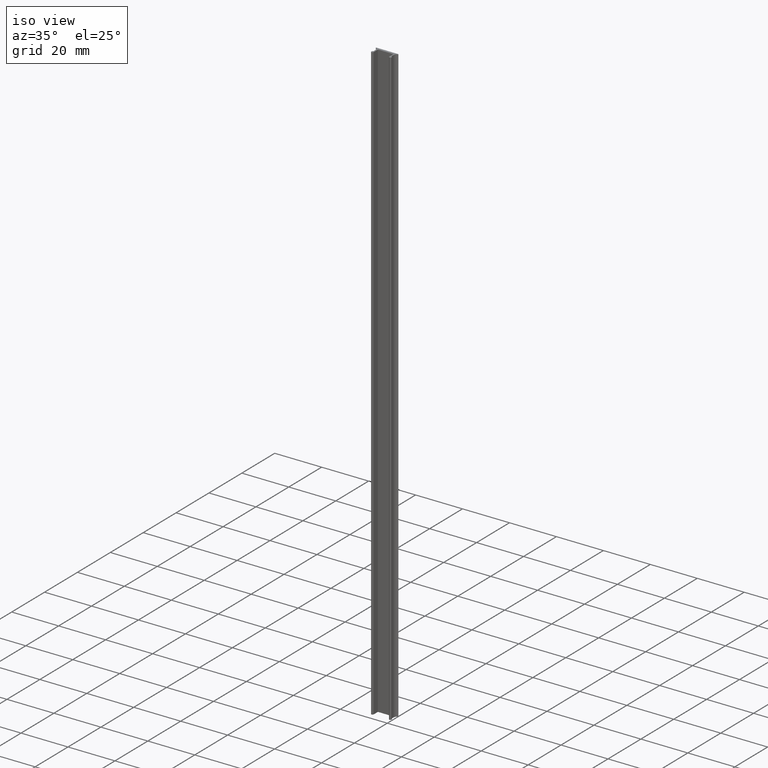
[diagram: clean part render]
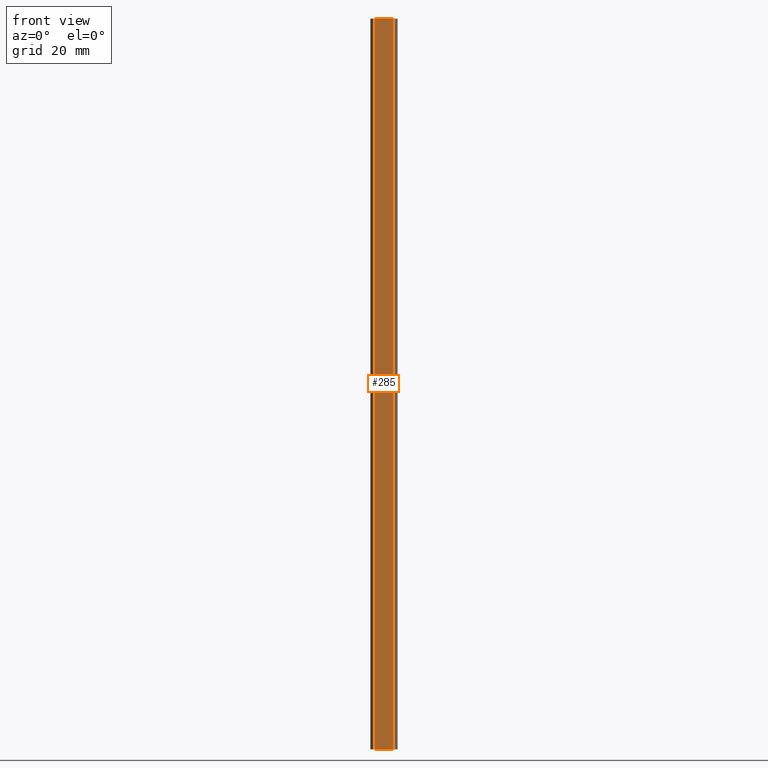
[diagram: tour spotlight — one face highlighted and labeled with its STEP entity id]
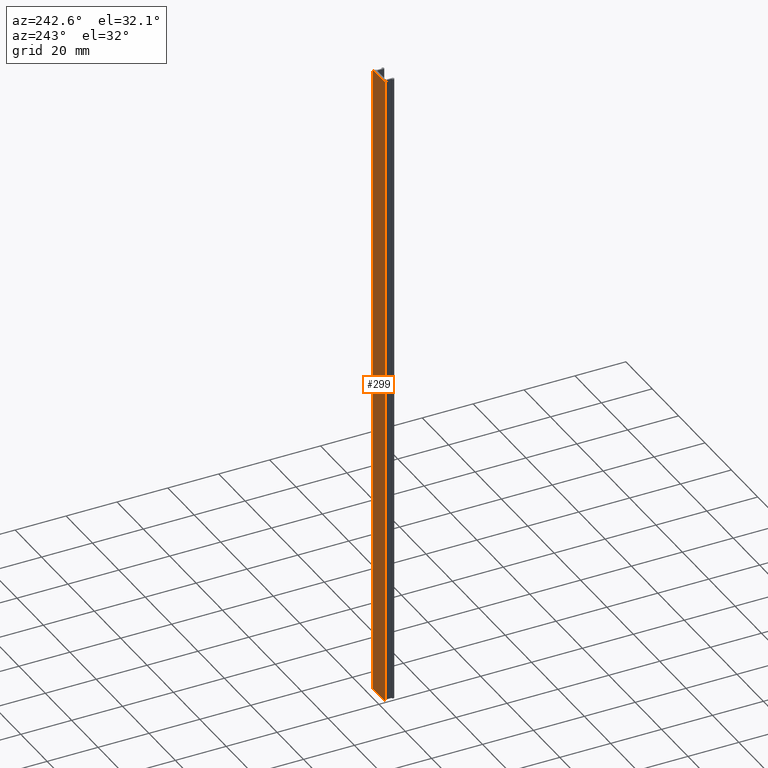
[diagram: tour spotlight — one face highlighted and labeled with its STEP entity id]
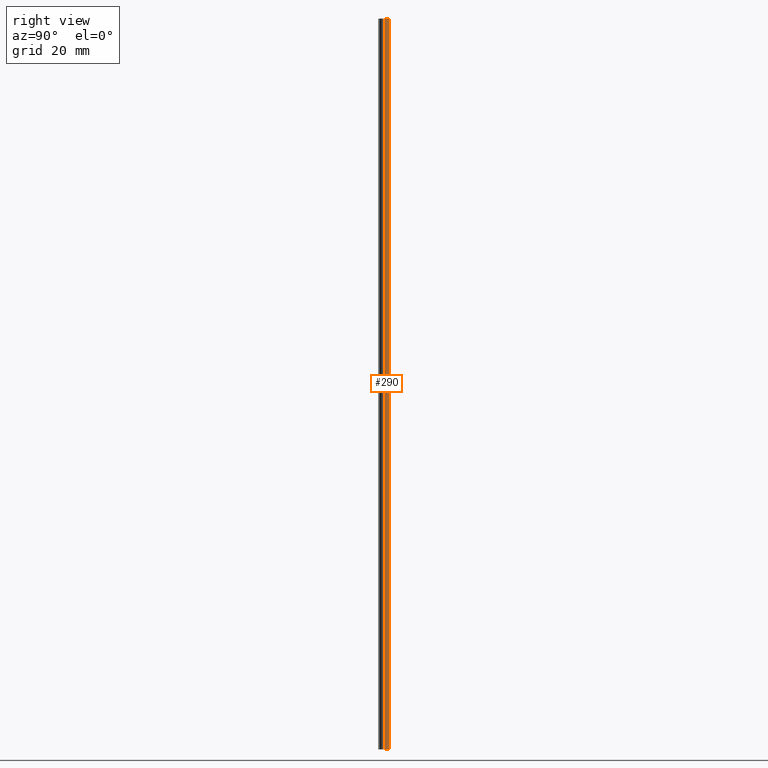
[diagram: tour spotlight — one face highlighted and labeled with its STEP entity id]
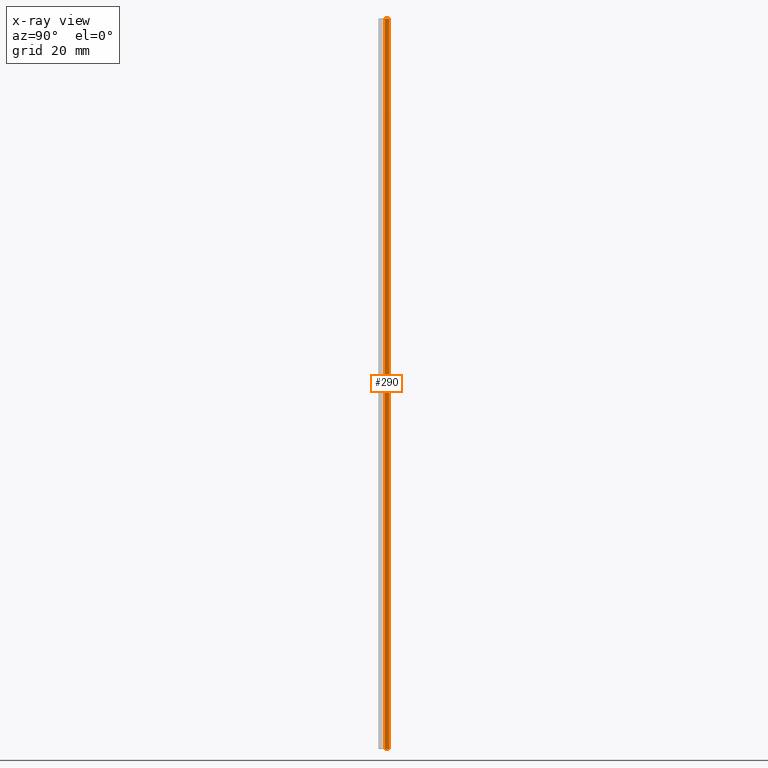
[diagram: x-ray of the same camera — body ghosted, this tour face saturated]
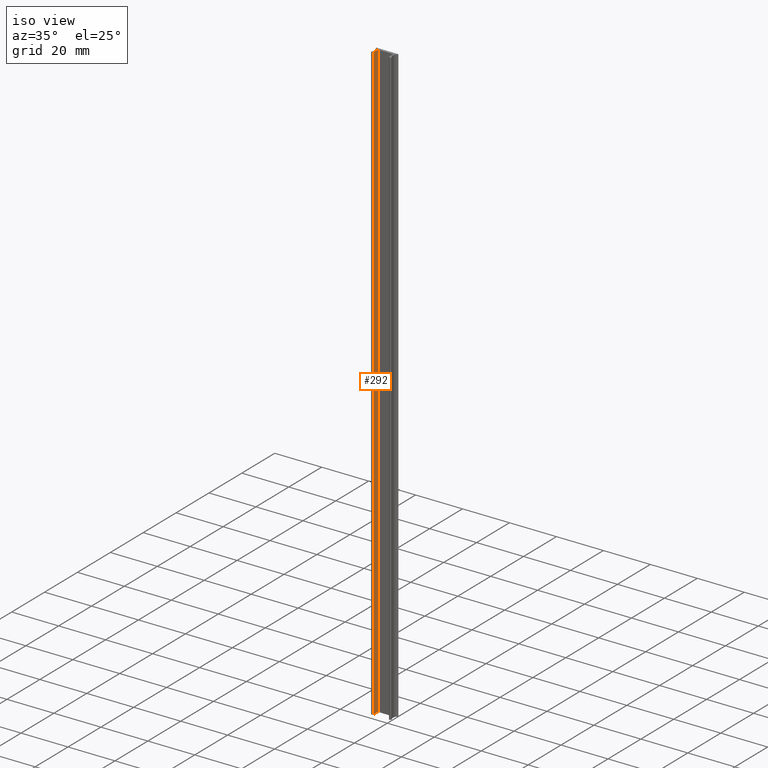
[diagram: tour spotlight — one face highlighted and labeled with its STEP entity id]
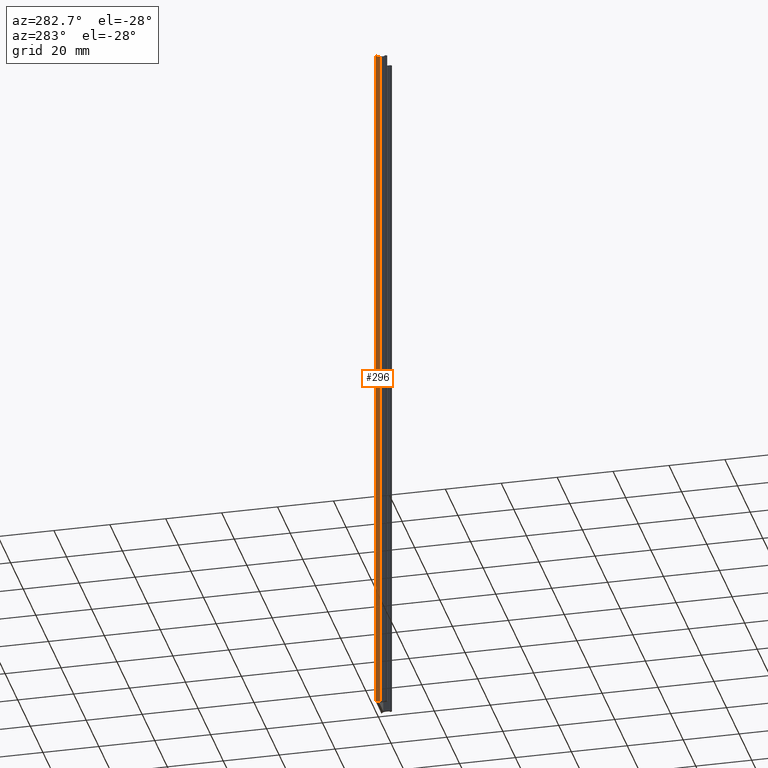
[diagram: tour spotlight — one face highlighted and labeled with its STEP entity id]
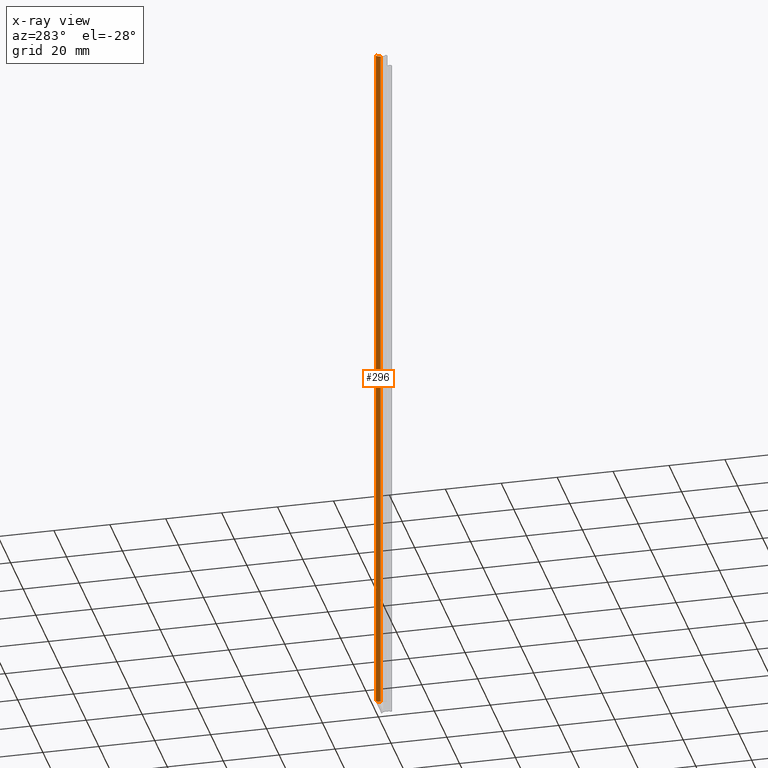
[diagram: x-ray of the same camera — body ghosted, this tour face saturated]
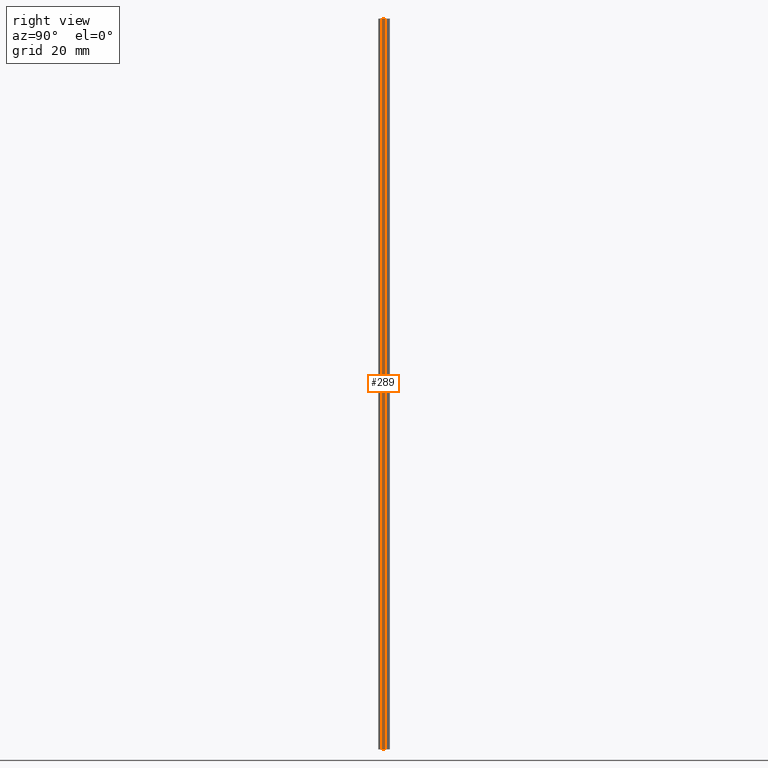
[diagram: tour spotlight — one face highlighted and labeled with its STEP entity id]
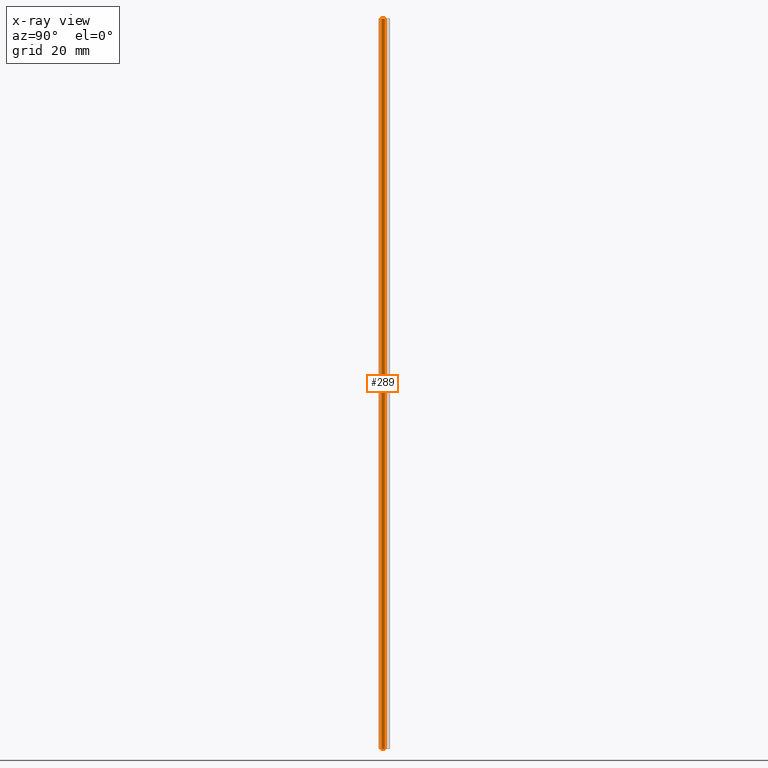
[diagram: x-ray of the same camera — body ghosted, this tour face saturated]
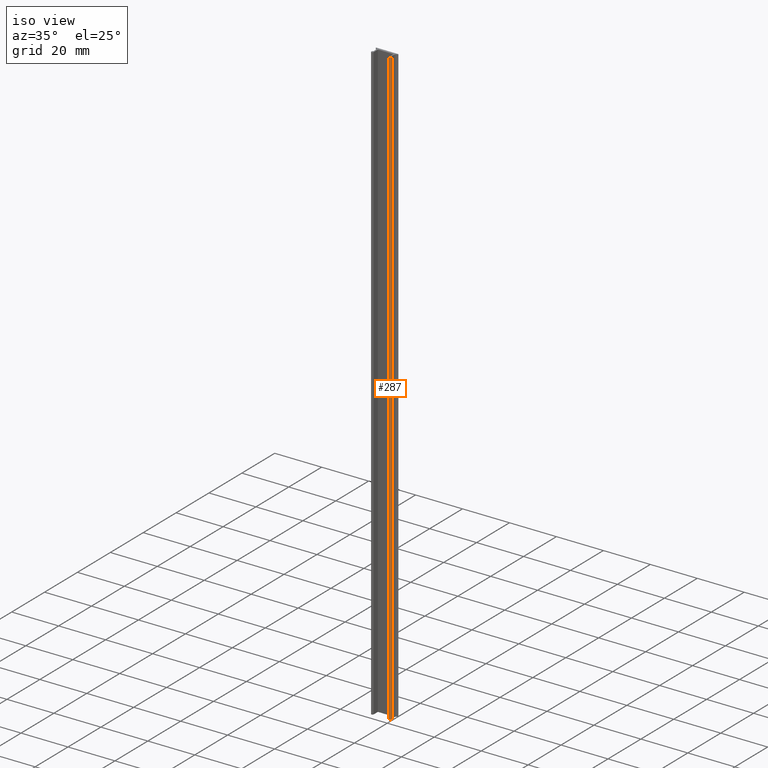
[diagram: tour spotlight — one face highlighted and labeled with its STEP entity id]
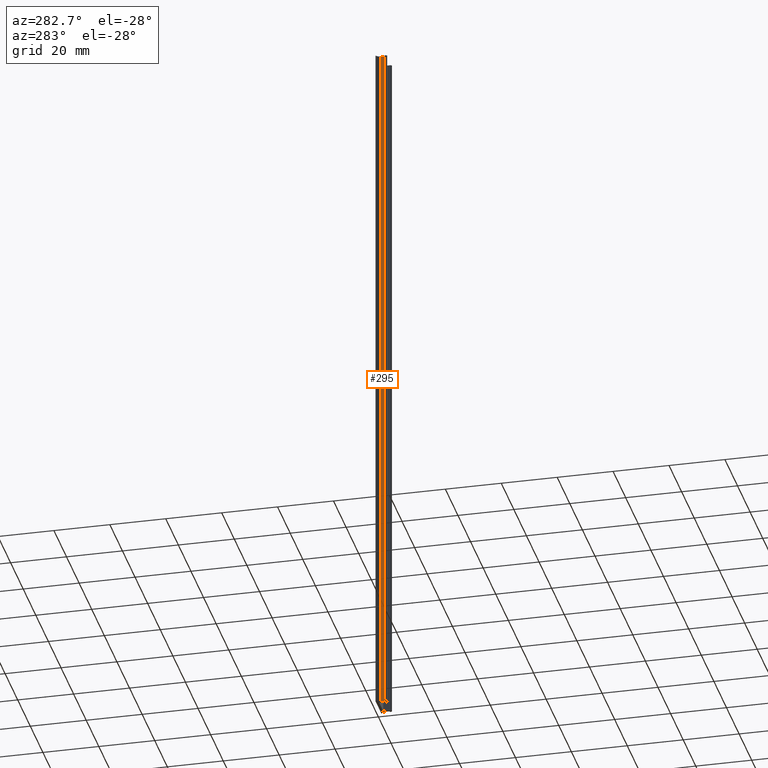
[diagram: tour spotlight — one face highlighted and labeled with its STEP entity id]
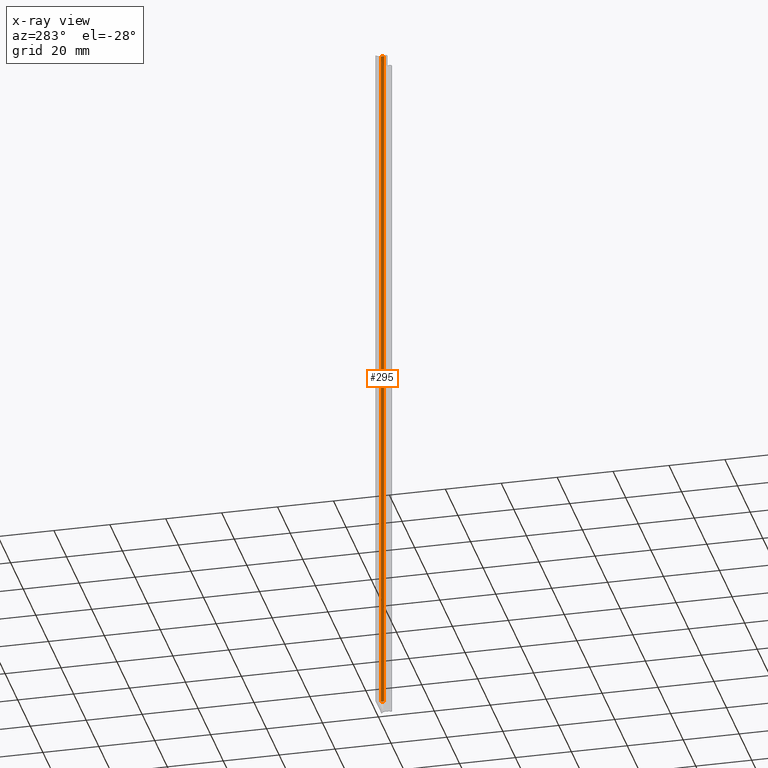
[diagram: x-ray of the same camera — body ghosted, this tour face saturated]
A machine part: a face-by-face anatomy tour. The part has 16 B-rep faces; the first image is the clean iso view, then the 8 largest visible faces are spotlighted one at a time (largest first), each with its STEP entity span.

Face 1 — front view, entity #285. In plain terms, the highlighted planar face has unit normal (0, -1, 0).
Definition (entity closure, byte-faithful):
#39=FACE_OUTER_BOUND('',#55,.T.);
#55=EDGE_LOOP('',(#193,#194,#195,#196));
#71=LINE('',#449,#97);
#72=LINE('',#451,#98);
#73=LINE('',#453,#99);
#74=LINE('',#454,#100);
#97=VECTOR('',#357,10.);
#98=VECTOR('',#358,10.);
#99=VECTOR('',#359,10.);
#100=VECTOR('',#360,10.);
#123=VERTEX_POINT('',#447);
#124=VERTEX_POINT('',#448);
#125=VERTEX_POINT('',#450);
#126=VERTEX_POINT('',#452);
#151=EDGE_CURVE('',#123,#124,#71,.T.);
#152=EDGE_CURVE('',#125,#123,#72,.T.);
#153=EDGE_CURVE('',#126,#125,#73,.T.);
#154=EDGE_CURVE('',#126,#124,#74,.T.);
#193=ORIENTED_EDGE('',*,*,#151,.F.);
#194=ORIENTED_EDGE('',*,*,#152,.F.);
#195=ORIENTED_EDGE('',*,*,#153,.F.);
#196=ORIENTED_EDGE('',*,*,#154,.T.);
#277=PLANE('',#321);
#285=ADVANCED_FACE('',(#39),#277,.T.);
#321=AXIS2_PLACEMENT_3D('',#446,#355,#356);
#355=DIRECTION('center_axis',(0.,-1.,0.));
#356=DIRECTION('ref_axis',(0.,0.,-1.));
#357=DIRECTION('',(1.,0.,0.));
#358=DIRECTION('',(0.,0.,1.));
#359=DIRECTION('',(-1.,0.,0.));
#360=DIRECTION('',(0.,0.,1.));
#446=CARTESIAN_POINT('Origin',(3.30000000000877,-0.999999999561894,0.));
#447=CARTESIAN_POINT('',(-3.30000000000876,-0.999999999561894,255.));
#448=CARTESIAN_POINT('',(3.30000000000877,-0.999999999561894,255.));
#449=CARTESIAN_POINT('',(1.65000000000439,-0.999999999561894,255.));
#450=CARTESIAN_POINT('',(-3.30000000000876,-0.999999999561894,0.));
#451=CARTESIAN_POINT('',(-3.30000000000876,-0.999999999561894,0.));
#452=CARTESIAN_POINT('',(3.30000000000877,-0.999999999561894,0.));
#453=CARTESIAN_POINT('',(1.65000000000439,-0.999999999561894,0.));
#454=CARTESIAN_POINT('',(3.30000000000877,-0.999999999561894,0.));

Face 2 — auxiliary view, entity #299. In plain terms, the highlighted planar face has unit normal (-0, 1, 0).
Definition (entity closure, byte-faithful):
#53=FACE_OUTER_BOUND('',#69,.T.);
#69=EDGE_LOOP('',(#259,#260,#261,#262));
#84=LINE('',#490,#110);
#94=LINE('',#525,#120);
#95=LINE('',#528,#121);
#96=LINE('',#530,#122);
#110=VECTOR('',#398,10.);
#120=VECTOR('',#434,10.);
#121=VECTOR('',#439,10.);
#122=VECTOR('',#442,10.);
#137=VERTEX_POINT('',#486);
#138=VERTEX_POINT('',#488);
#149=VERTEX_POINT('',#522);
#150=VERTEX_POINT('',#524);
#172=EDGE_CURVE('',#137,#138,#84,.T.);
#189=EDGE_CURVE('',#149,#150,#94,.T.);
#191=EDGE_CURVE('',#150,#138,#95,.T.);
#192=EDGE_CURVE('',#149,#137,#96,.T.);
#259=ORIENTED_EDGE('',*,*,#172,.T.);
#260=ORIENTED_EDGE('',*,*,#191,.F.);
#261=ORIENTED_EDGE('',*,*,#189,.F.);
#262=ORIENTED_EDGE('',*,*,#192,.T.);
#283=PLANE('',#351);
#299=ADVANCED_FACE('',(#53),#283,.T.);
#351=AXIS2_PLACEMENT_3D('',#529,#440,#441);
#398=DIRECTION('',(0.,0.,-1.));
#434=DIRECTION('',(0.,0.,-1.));
#439=DIRECTION('',(1.,4.28626379701574E-16,0.));
#440=DIRECTION('center_axis',(-4.28626379701574E-16,1.,0.));
#441=DIRECTION('ref_axis',(-1.,-4.28626379701574E-16,0.));
#442=DIRECTION('',(1.,4.28626379701574E-16,0.));
#486=CARTESIAN_POINT('',(4.66780780711905,0.,255.));
#488=CARTESIAN_POINT('',(4.66780780711905,0.,0.));
#490=CARTESIAN_POINT('',(4.66780780711905,2.91433543964104E-15,0.));
#522=CARTESIAN_POINT('',(-4.66780780711905,0.,255.));
#524=CARTESIAN_POINT('',(-4.66780780711905,0.,0.));
#525=CARTESIAN_POINT('',(-4.66780780711905,-1.07552855510562E-15,0.));
#528=CARTESIAN_POINT('',(2.5,2.08166817117217E-15,0.));
#529=CARTESIAN_POINT('Origin',(5.,3.06161699786838E-15,0.));
#530=CARTESIAN_POINT('',(2.5,2.08166817117217E-15,255.));

Face 3 — right view, entity #290. An x-ray twin of the same camera follows (body ghosted, this face saturated) — the face is partly hidden behind the body. In plain terms, the highlighted cylindrical surface (edge-blend (fillet) strip) has radius 1.69 mm, axis along (0, 0, 1).
Definition (entity closure, byte-faithful):
#19=CIRCLE('',#331,1.68999999973122);
#20=CIRCLE('',#332,1.68999999973122);
#33=CYLINDRICAL_SURFACE('',#330,1.68999999973122);
#44=FACE_OUTER_BOUND('',#60,.T.);
#60=EDGE_LOOP('',(#213,#214,#215,#216));
#82=LINE('',#478,#108);
#83=LINE('',#484,#109);
#108=VECTOR('',#384,10.);
#109=VECTOR('',#391,10.);
#133=VERTEX_POINT('',#474);
#134=VERTEX_POINT('',#476);
#135=VERTEX_POINT('',#480);
#136=VERTEX_POINT('',#482);
#166=EDGE_CURVE('',#134,#133,#82,.T.);
#167=EDGE_CURVE('',#133,#135,#19,.T.);
#168=EDGE_CURVE('',#136,#134,#20,.T.);
#169=EDGE_CURVE('',#136,#135,#83,.T.);
#213=ORIENTED_EDGE('',*,*,#167,.F.);
#214=ORIENTED_EDGE('',*,*,#166,.F.);
#215=ORIENTED_EDGE('',*,*,#168,.F.);
#216=ORIENTED_EDGE('',*,*,#169,.T.);
#290=ADVANCED_FACE('',(#44),#33,.F.);
#330=AXIS2_PLACEMENT_3D('',#479,#385,#386);
#331=AXIS2_PLACEMENT_3D('',#481,#387,#388);
#332=AXIS2_PLACEMENT_3D('',#483,#389,#390);
#384=DIRECTION('',(0.,0.,1.));
#385=DIRECTION('center_axis',(0.,0.,1.));
#386=DIRECTION('ref_axis',(0.459325247268127,-0.888268156145471,0.));
#387=DIRECTION('center_axis',(0.,0.,-1.));
#388=DIRECTION('ref_axis',(0.459325247268127,-0.888268156145471,0.));
#389=DIRECTION('center_axis',(0.,0.,1.));
#390=DIRECTION('ref_axis',(0.459325247268127,-0.888268156145471,0.));
#391=DIRECTION('',(0.,0.,1.));
#474=CARTESIAN_POINT('',(3.79999999998854,-1.68999999973122,255.));
#476=CARTESIAN_POINT('',(3.79999999998854,-1.68999999973122,0.));
#478=CARTESIAN_POINT('',(3.79999999998854,-1.68999999973122,0.));
#479=CARTESIAN_POINT('Origin',(5.48999999971976,-1.68999999973122,0.));
#480=CARTESIAN_POINT('',(4.71374033196008,-0.18882681608412,255.));
#481=CARTESIAN_POINT('Origin',(5.48999999971976,-1.68999999973122,255.));
#482=CARTESIAN_POINT('',(4.71374033196008,-0.18882681608412,0.));
#483=CARTESIAN_POINT('Origin',(5.48999999971976,-1.68999999973122,0.));
#484=CARTESIAN_POINT('',(4.71374033196008,-0.18882681608412,0.));

Face 4 — iso view, entity #292. In plain terms, the highlighted planar face has unit normal (1, 0, 0).
Definition (entity closure, byte-faithful):
#46=FACE_OUTER_BOUND('',#62,.T.);
#62=EDGE_LOOP('',(#221,#222,#223,#224));
#72=LINE('',#451,#98);
#85=LINE('',#493,#111);
#86=LINE('',#495,#112);
#87=LINE('',#496,#113);
#98=VECTOR('',#358,10.);
#111=VECTOR('',#401,10.);
#112=VECTOR('',#402,10.);
#113=VECTOR('',#403,10.);
#123=VERTEX_POINT('',#447);
#125=VERTEX_POINT('',#450);
#139=VERTEX_POINT('',#492);
#140=VERTEX_POINT('',#494);
#152=EDGE_CURVE('',#125,#123,#72,.T.);
#173=EDGE_CURVE('',#139,#123,#85,.T.);
#174=EDGE_CURVE('',#140,#139,#86,.T.);
#175=EDGE_CURVE('',#125,#140,#87,.T.);
#221=ORIENTED_EDGE('',*,*,#173,.F.);
#222=ORIENTED_EDGE('',*,*,#174,.F.);
#223=ORIENTED_EDGE('',*,*,#175,.F.);
#224=ORIENTED_EDGE('',*,*,#152,.T.);
#280=PLANE('',#336);
#292=ADVANCED_FACE('',(#46),#280,.T.);
#336=AXIS2_PLACEMENT_3D('',#491,#399,#400);
#358=DIRECTION('',(0.,0.,1.));
#399=DIRECTION('center_axis',(1.,0.,0.));
#400=DIRECTION('ref_axis',(0.,0.,-1.));
#401=DIRECTION('',(0.,1.,0.));
#402=DIRECTION('',(0.,0.,1.));
#403=DIRECTION('',(0.,-1.,0.));
#447=CARTESIAN_POINT('',(-3.30000000000876,-0.999999999561894,255.));
#450=CARTESIAN_POINT('',(-3.30000000000876,-0.999999999561894,0.));
#451=CARTESIAN_POINT('',(-3.30000000000876,-0.999999999561894,0.));
#491=CARTESIAN_POINT('Origin',(-3.30000000000876,-0.999999999561894,0.));
#492=CARTESIAN_POINT('',(-3.30000000000876,-3.49999999997263,255.));
#493=CARTESIAN_POINT('',(-3.30000000000876,-1.74999999978095,255.));
#494=CARTESIAN_POINT('',(-3.30000000000876,-3.49999999997263,0.));
#495=CARTESIAN_POINT('',(-3.30000000000876,-3.49999999997263,0.));
#496=CARTESIAN_POINT('',(-3.30000000000876,-1.74999999978095,0.));

Face 5 — auxiliary view, entity #296. An x-ray twin of the same camera follows (body ghosted, this face saturated) — the face is partly hidden behind the body. In plain terms, the highlighted cylindrical surface (edge-blend (fillet) strip) has radius 1.69 mm, axis along (0, 0, 1).
Definition (entity closure, byte-faithful):
#27=CIRCLE('',#345,1.68999999973122);
#28=CIRCLE('',#346,1.68999999973122);
#37=CYLINDRICAL_SURFACE('',#344,1.68999999973122);
#50=FACE_OUTER_BOUND('',#66,.T.);
#66=EDGE_LOOP('',(#237,#238,#239,#240));
#91=LINE('',#513,#117);
#93=LINE('',#519,#119);
#117=VECTOR('',#421,10.);
#119=VECTOR('',#427,10.);
#145=VERTEX_POINT('',#510);
#146=VERTEX_POINT('',#512);
#147=VERTEX_POINT('',#516);
#148=VERTEX_POINT('',#518);
#183=EDGE_CURVE('',#146,#145,#91,.T.);
#185=EDGE_CURVE('',#147,#145,#27,.T.);
#186=EDGE_CURVE('',#148,#147,#93,.T.);
#187=EDGE_CURVE('',#146,#148,#28,.T.);
#237=ORIENTED_EDGE('',*,*,#185,.F.);
#238=ORIENTED_EDGE('',*,*,#186,.F.);
#239=ORIENTED_EDGE('',*,*,#187,.F.);
#240=ORIENTED_EDGE('',*,*,#183,.T.);
#296=ADVANCED_FACE('',(#50),#37,.F.);
#344=AXIS2_PLACEMENT_3D('',#515,#423,#424);
#345=AXIS2_PLACEMENT_3D('',#517,#425,#426);
#346=AXIS2_PLACEMENT_3D('',#520,#428,#429);
#421=DIRECTION('',(0.,0.,1.));
#423=DIRECTION('center_axis',(0.,0.,1.));
#424=DIRECTION('ref_axis',(-1.,0.,0.));
#425=DIRECTION('center_axis',(0.,0.,-1.));
#426=DIRECTION('ref_axis',(-1.,0.,0.));
#427=DIRECTION('',(0.,0.,1.));
#428=DIRECTION('center_axis',(0.,0.,1.));
#429=DIRECTION('ref_axis',(-1.,0.,0.));
#510=CARTESIAN_POINT('',(-3.79999999998854,-1.68999999973122,255.));
#512=CARTESIAN_POINT('',(-3.79999999998854,-1.68999999973122,0.));
#513=CARTESIAN_POINT('',(-3.79999999998854,-1.68999999973122,0.));
#515=CARTESIAN_POINT('Origin',(-5.48999999971976,-1.68999999973122,0.));
#516=CARTESIAN_POINT('',(-4.71374033196008,-0.18882681608412,255.));
#517=CARTESIAN_POINT('Origin',(-5.48999999971976,-1.68999999973122,255.));
#518=CARTESIAN_POINT('',(-4.71374033196008,-0.18882681608412,0.));
#519=CARTESIAN_POINT('',(-4.71374033196008,-0.18882681608412,0.));
#520=CARTESIAN_POINT('Origin',(-5.48999999971976,-1.68999999973122,0.));

Face 6 — right view, entity #289. An x-ray twin of the same camera follows (body ghosted, this face saturated) — the face is partly hidden behind the body. In plain terms, the highlighted planar face has unit normal (1, 0, 0).
Definition (entity closure, byte-faithful):
#43=FACE_OUTER_BOUND('',#59,.T.);
#59=EDGE_LOOP('',(#209,#210,#211,#212));
#79=LINE('',#472,#105);
#80=LINE('',#475,#106);
#81=LINE('',#477,#107);
#82=LINE('',#478,#108);
#105=VECTOR('',#379,10.);
#106=VECTOR('',#382,10.);
#107=VECTOR('',#383,10.);
#108=VECTOR('',#384,10.);
#131=VERTEX_POINT('',#468);
#132=VERTEX_POINT('',#470);
#133=VERTEX_POINT('',#474);
#134=VERTEX_POINT('',#476);
#163=EDGE_CURVE('',#132,#131,#79,.T.);
#164=EDGE_CURVE('',#131,#133,#80,.T.);
#165=EDGE_CURVE('',#134,#132,#81,.T.);
#166=EDGE_CURVE('',#134,#133,#82,.T.);
#209=ORIENTED_EDGE('',*,*,#164,.F.);
#210=ORIENTED_EDGE('',*,*,#163,.F.);
#211=ORIENTED_EDGE('',*,*,#165,.F.);
#212=ORIENTED_EDGE('',*,*,#166,.T.);
#279=PLANE('',#329);
#289=ADVANCED_FACE('',(#43),#279,.T.);
#329=AXIS2_PLACEMENT_3D('',#473,#380,#381);
#379=DIRECTION('',(0.,0.,1.));
#380=DIRECTION('center_axis',(1.,0.,0.));
#381=DIRECTION('ref_axis',(0.,0.,-1.));
#382=DIRECTION('',(0.,1.,0.));
#383=DIRECTION('',(0.,-1.,0.));
#384=DIRECTION('',(0.,0.,1.));
#468=CARTESIAN_POINT('',(3.79999999998854,-2.90839202141671,255.));
#470=CARTESIAN_POINT('',(3.79999999998854,-2.90839202141671,0.));
#472=CARTESIAN_POINT('',(3.79999999998854,-2.90839202141671,0.));
#473=CARTESIAN_POINT('Origin',(3.79999999998854,-1.68999999973122,0.));
#474=CARTESIAN_POINT('',(3.79999999998854,-1.68999999973122,255.));
#475=CARTESIAN_POINT('',(3.79999999998854,-2.09499999986561,255.));
#476=CARTESIAN_POINT('',(3.79999999998854,-1.68999999973122,0.));
#477=CARTESIAN_POINT('',(3.79999999998854,-2.09499999986561,0.));
#478=CARTESIAN_POINT('',(3.79999999998854,-1.68999999973122,0.));

Face 7 — iso view, entity #287. In plain terms, the highlighted cylindrical surface (edge-blend (fillet) strip) has radius 0.5 mm, axis along (0, 0, 1).
Definition (entity closure, byte-faithful):
#15=CIRCLE('',#324,0.500000000027362);
#16=CIRCLE('',#325,0.500000000027362);
#31=CYLINDRICAL_SURFACE('',#323,0.500000000027362);
#41=FACE_OUTER_BOUND('',#57,.T.);
#57=EDGE_LOOP('',(#201,#202,#203,#204));
#77=LINE('',#460,#103);
#78=LINE('',#466,#104);
#103=VECTOR('',#365,10.);
#104=VECTOR('',#372,10.);
#127=VERTEX_POINT('',#456);
#128=VERTEX_POINT('',#458);
#129=VERTEX_POINT('',#462);
#130=VERTEX_POINT('',#464);
#157=EDGE_CURVE('',#128,#127,#77,.T.);
#158=EDGE_CURVE('',#127,#129,#15,.T.);
#159=EDGE_CURVE('',#130,#128,#16,.T.);
#160=EDGE_CURVE('',#130,#129,#78,.T.);
#201=ORIENTED_EDGE('',*,*,#158,.F.);
#202=ORIENTED_EDGE('',*,*,#157,.F.);
#203=ORIENTED_EDGE('',*,*,#159,.F.);
#204=ORIENTED_EDGE('',*,*,#160,.T.);
#287=ADVANCED_FACE('',(#41),#31,.T.);
#323=AXIS2_PLACEMENT_3D('',#461,#366,#367);
#324=AXIS2_PLACEMENT_3D('',#463,#368,#369);
#325=AXIS2_PLACEMENT_3D('',#465,#370,#371);
#365=DIRECTION('',(0.,0.,1.));
#366=DIRECTION('center_axis',(0.,0.,1.));
#367=DIRECTION('ref_axis',(0.645497224267798,-0.763762615910578,0.));
#368=DIRECTION('center_axis',(0.,0.,1.));
#369=DIRECTION('ref_axis',(-1.,4.44089209825763E-15,0.));
#370=DIRECTION('center_axis',(0.,0.,-1.));
#371=DIRECTION('ref_axis',(-1.,4.44089209825763E-15,0.));
#372=DIRECTION('',(0.,0.,1.));
#456=CARTESIAN_POINT('',(3.30000000000877,-3.49999999997263,255.));
#458=CARTESIAN_POINT('',(3.30000000000877,-3.49999999997263,0.));
#460=CARTESIAN_POINT('',(3.30000000000877,-3.49999999997263,0.));
#461=CARTESIAN_POINT('Origin',(3.80000000003613,-3.49999999997263,0.));
#462=CARTESIAN_POINT('',(3.88333333350326,-3.00699335137586,255.));
#463=CARTESIAN_POINT('Origin',(3.80000000003613,-3.49999999997263,255.));
#464=CARTESIAN_POINT('',(3.88333333350326,-3.00699335137586,0.));
#465=CARTESIAN_POINT('Origin',(3.80000000003613,-3.49999999997263,0.));
#466=CARTESIAN_POINT('',(3.88333333350326,-3.00699335137586,0.));

Face 8 — auxiliary view, entity #295. An x-ray twin of the same camera follows (body ghosted, this face saturated) — the face is partly hidden behind the body. In plain terms, the highlighted planar face has unit normal (-1, 0, 0).
Definition (entity closure, byte-faithful):
#49=FACE_OUTER_BOUND('',#65,.T.);
#65=EDGE_LOOP('',(#233,#234,#235,#236));
#89=LINE('',#507,#115);
#90=LINE('',#511,#116);
#91=LINE('',#513,#117);
#92=LINE('',#514,#118);
#115=VECTOR('',#415,10.);
#116=VECTOR('',#420,10.);
#117=VECTOR('',#421,10.);
#118=VECTOR('',#422,10.);
#143=VERTEX_POINT('',#504);
#144=VERTEX_POINT('',#506);
#145=VERTEX_POINT('',#510);
#146=VERTEX_POINT('',#512);
#180=EDGE_CURVE('',#144,#143,#89,.T.);
#182=EDGE_CURVE('',#145,#143,#90,.T.);
#183=EDGE_CURVE('',#146,#145,#91,.T.);
#184=EDGE_CURVE('',#144,#146,#92,.T.);
#233=ORIENTED_EDGE('',*,*,#182,.F.);
#234=ORIENTED_EDGE('',*,*,#183,.F.);
#235=ORIENTED_EDGE('',*,*,#184,.F.);
#236=ORIENTED_EDGE('',*,*,#180,.T.);
#281=PLANE('',#343);
#295=ADVANCED_FACE('',(#49),#281,.T.);
#343=AXIS2_PLACEMENT_3D('',#509,#418,#419);
#415=DIRECTION('',(0.,0.,1.));
#418=DIRECTION('center_axis',(-1.,0.,0.));
#419=DIRECTION('ref_axis',(0.,0.,1.));
#420=DIRECTION('',(0.,-1.,0.));
#421=DIRECTION('',(0.,0.,1.));
#422=DIRECTION('',(0.,1.,0.));
#504=CARTESIAN_POINT('',(-3.79999999998854,-2.90839202141671,255.));
#506=CARTESIAN_POINT('',(-3.79999999998854,-2.90839202141671,0.));
#507=CARTESIAN_POINT('',(-3.79999999998854,-2.90839202141671,0.));
#509=CARTESIAN_POINT('Origin',(-3.79999999998854,-2.90839202141671,0.));
#510=CARTESIAN_POINT('',(-3.79999999998854,-1.68999999973122,255.));
#511=CARTESIAN_POINT('',(-3.79999999998854,-2.70419601070835,255.));
#512=CARTESIAN_POINT('',(-3.79999999998854,-1.68999999973122,0.));
#513=CARTESIAN_POINT('',(-3.79999999998854,-1.68999999973122,0.));
#514=CARTESIAN_POINT('',(-3.79999999998854,-2.70419601070835,0.));